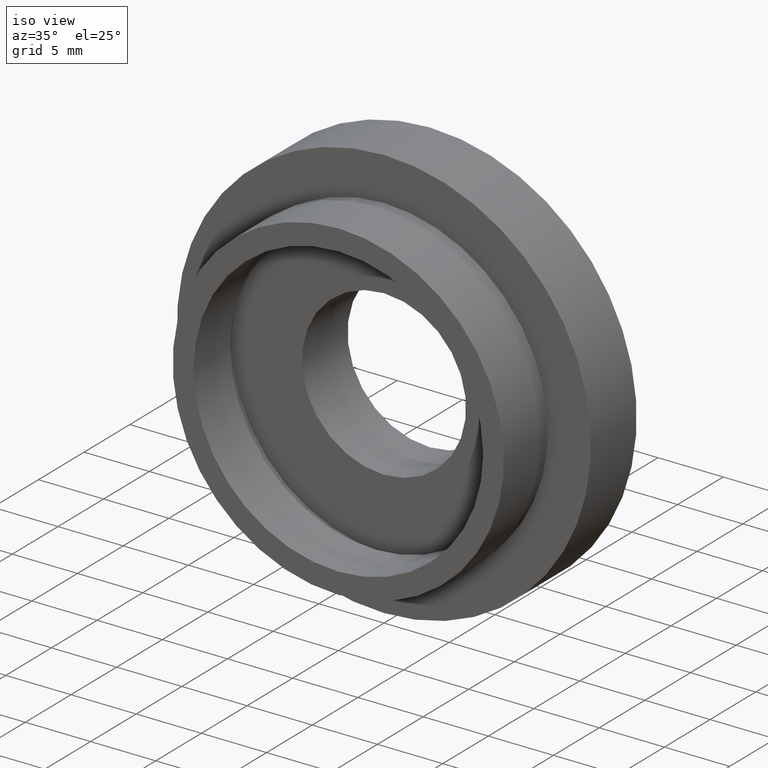
[diagram: clean part render]
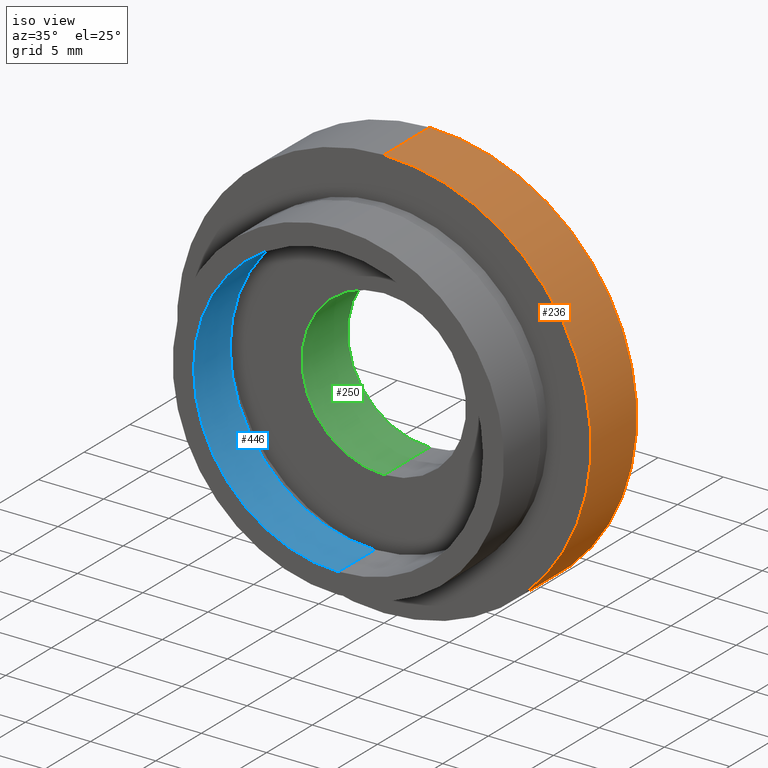
[diagram: same view with three faces highlighted in distinct colors, each labeled with its STEP entity id]
A machine part, iso view with three faces highlighted in distinct colors.
Their STEP definitions:

[orange] entity #236 — the highlighted cylindrical surface (partial cylindrical patch) has radius 15.875 mm, axis along (-0, 1, -0).
#21 = FACE_OUTER_BOUND ( 'NONE', #494, .T. ) ;
#74 = CARTESIAN_POINT ( 'NONE',  ( 1.944126793646423200E-015, 13.74468085106383300, -15.87500000000000000 ) ) ;
#85 = AXIS2_PLACEMENT_3D ( 'NONE', #604, #420, #414 ) ;
#99 = ORIENTED_EDGE ( 'NONE', *, *, #433, .T. ) ;
#117 = EDGE_CURVE ( 'NONE', #404, #522, #394, .T. ) ;
#138 = AXIS2_PLACEMENT_3D ( 'NONE', #509, #214, #557 ) ;
#199 = VERTEX_POINT ( 'NONE', #436 ) ;
#203 = VERTEX_POINT ( 'NONE', #479 ) ;
#204 = CARTESIAN_POINT ( 'NONE',  ( 0.0000000000000000000, 13.74468085106383300, 15.87500000000000000 ) ) ;
#214 = DIRECTION ( 'NONE',  ( -0.0000000000000000000, 1.000000000000000000, -0.0000000000000000000 ) ) ;
#233 = CIRCLE ( 'NONE', #138, 15.87500000000000000 ) ;
#236 = ADVANCED_FACE ( 'NONE', ( #21 ), #443, .T. ) ;
#260 = DIRECTION ( 'NONE',  ( -0.0000000000000000000, 1.000000000000000000, -0.0000000000000000000 ) ) ;
#265 = LINE ( 'NONE', #74, #558 ) ;
#306 = DIRECTION ( 'NONE',  ( -0.0000000000000000000, 1.000000000000000000, -0.0000000000000000000 ) ) ;
#333 = VECTOR ( 'NONE', #588, 1000.000000000000000 ) ;
#354 = EDGE_CURVE ( 'NONE', #404, #203, #399, .T. ) ;
#356 = CARTESIAN_POINT ( 'NONE',  ( 0.0000000000000000000, 5.000000000000000900, 15.87500000000000000 ) ) ;
#357 = CARTESIAN_POINT ( 'NONE',  ( 0.0000000000000000000, 5.000000000000000900, 0.0000000000000000000 ) ) ;
#394 = LINE ( 'NONE', #204, #333 ) ;
#399 = CIRCLE ( 'NONE', #599, 15.87500000000000000 ) ;
#404 = VERTEX_POINT ( 'NONE', #356 ) ;
#411 = EDGE_CURVE ( 'NONE', #522, #199, #233, .T. ) ;
#414 = DIRECTION ( 'NONE',  ( 0.0000000000000000000, 0.0000000000000000000, 1.000000000000000000 ) ) ;
#420 = DIRECTION ( 'NONE',  ( -0.0000000000000000000, 1.000000000000000000, -0.0000000000000000000 ) ) ;
#433 = EDGE_CURVE ( 'NONE', #203, #199, #265, .T. ) ;
#436 = CARTESIAN_POINT ( 'NONE',  ( 1.944126793646423200E-015, 10.00000000000000000, -15.87500000000000000 ) ) ;
#437 = DIRECTION ( 'NONE',  ( 0.0000000000000000000, 0.0000000000000000000, 1.000000000000000000 ) ) ;
#443 = CYLINDRICAL_SURFACE ( 'NONE', #85, 15.87500000000000000 ) ;
#479 = CARTESIAN_POINT ( 'NONE',  ( 1.944126793646423200E-015, 5.000000000000000900, -15.87500000000000000 ) ) ;
#494 = EDGE_LOOP ( 'NONE', ( #596, #99, #593, #497 ) ) ;
#497 = ORIENTED_EDGE ( 'NONE', *, *, #117, .F. ) ;
#509 = CARTESIAN_POINT ( 'NONE',  ( 0.0000000000000000000, 10.00000000000000000, 0.0000000000000000000 ) ) ;
#522 = VERTEX_POINT ( 'NONE', #591 ) ;
#557 = DIRECTION ( 'NONE',  ( 0.0000000000000000000, 0.0000000000000000000, 1.000000000000000000 ) ) ;
#558 = VECTOR ( 'NONE', #260, 1000.000000000000000 ) ;
#588 = DIRECTION ( 'NONE',  ( -0.0000000000000000000, 1.000000000000000000, -0.0000000000000000000 ) ) ;
#591 = CARTESIAN_POINT ( 'NONE',  ( 0.0000000000000000000, 10.00000000000000000, 15.87500000000000000 ) ) ;
#593 = ORIENTED_EDGE ( 'NONE', *, *, #411, .F. ) ;
#596 = ORIENTED_EDGE ( 'NONE', *, *, #354, .T. ) ;
#599 = AXIS2_PLACEMENT_3D ( 'NONE', #357, #306, #437 ) ;
#604 = CARTESIAN_POINT ( 'NONE',  ( 0.0000000000000000000, 13.74468085106383300, 0.0000000000000000000 ) ) ;

[blue] entity #446 — the highlighted cylindrical surface (partial cylindrical patch) has radius 11.1 mm, axis along (-0, 1, -0).
#19 = DIRECTION ( 'NONE',  ( 0.0000000000000000000, 0.0000000000000000000, 1.000000000000000000 ) ) ;
#25 = DIRECTION ( 'NONE',  ( -0.0000000000000000000, 1.000000000000000000, -0.0000000000000000000 ) ) ;
#28 = DIRECTION ( 'NONE',  ( 0.0000000000000000000, 0.0000000000000000000, 1.000000000000000000 ) ) ;
#69 = CARTESIAN_POINT ( 'NONE',  ( 0.0000000000000000000, 0.0000000000000000000, 0.0000000000000000000 ) ) ;
#75 = CARTESIAN_POINT ( 'NONE',  ( 0.0000000000000000000, 13.74468085106383300, 0.0000000000000000000 ) ) ;
#77 = EDGE_CURVE ( 'NONE', #269, #475, #244, .T. ) ;
#104 = AXIS2_PLACEMENT_3D ( 'NONE', #309, #25, #358 ) ;
#106 = ORIENTED_EDGE ( 'NONE', *, *, #541, .F. ) ;
#128 = CARTESIAN_POINT ( 'NONE',  ( 0.0000000000000000000, 4.000000000000000000, 11.10000000000000100 ) ) ;
#144 = CARTESIAN_POINT ( 'NONE',  ( 0.0000000000000000000, 13.74468085106383300, 11.10000000000000100 ) ) ;
#191 = CARTESIAN_POINT ( 'NONE',  ( 1.359357947053562400E-015, 4.000000000000000000, -11.10000000000000100 ) ) ;
#195 = LINE ( 'NONE', #300, #338 ) ;
#208 = EDGE_LOOP ( 'NONE', ( #106, #372, #453, #582 ) ) ;
#244 = LINE ( 'NONE', #144, #458 ) ;
#261 = DIRECTION ( 'NONE',  ( -0.0000000000000000000, 1.000000000000000000, -0.0000000000000000000 ) ) ;
#269 = VERTEX_POINT ( 'NONE', #562 ) ;
#300 = CARTESIAN_POINT ( 'NONE',  ( 1.359357947053562400E-015, 13.74468085106383300, -11.10000000000000100 ) ) ;
#309 = CARTESIAN_POINT ( 'NONE',  ( 0.0000000000000000000, 4.000000000000000000, 0.0000000000000000000 ) ) ;
#323 = EDGE_CURVE ( 'NONE', #438, #592, #195, .T. ) ;
#338 = VECTOR ( 'NONE', #495, 1000.000000000000000 ) ;
#349 = AXIS2_PLACEMENT_3D ( 'NONE', #69, #351, #19 ) ;
#351 = DIRECTION ( 'NONE',  ( -0.0000000000000000000, 1.000000000000000000, -0.0000000000000000000 ) ) ;
#358 = DIRECTION ( 'NONE',  ( 0.0000000000000000000, 0.0000000000000000000, 1.000000000000000000 ) ) ;
#362 = DIRECTION ( 'NONE',  ( -0.0000000000000000000, 1.000000000000000000, -0.0000000000000000000 ) ) ;
#368 = CIRCLE ( 'NONE', #104, 11.10000000000000100 ) ;
#372 = ORIENTED_EDGE ( 'NONE', *, *, #323, .T. ) ;
#408 = CARTESIAN_POINT ( 'NONE',  ( 1.359357947053562400E-015, 0.0000000000000000000, -11.10000000000000100 ) ) ;
#410 = FACE_OUTER_BOUND ( 'NONE', #208, .T. ) ;
#421 = EDGE_CURVE ( 'NONE', #592, #475, #368, .T. ) ;
#438 = VERTEX_POINT ( 'NONE', #408 ) ;
#446 = ADVANCED_FACE ( 'NONE', ( #410 ), #597, .F. ) ;
#453 = ORIENTED_EDGE ( 'NONE', *, *, #421, .T. ) ;
#458 = VECTOR ( 'NONE', #261, 1000.000000000000000 ) ;
#475 = VERTEX_POINT ( 'NONE', #128 ) ;
#493 = AXIS2_PLACEMENT_3D ( 'NONE', #75, #362, #28 ) ;
#495 = DIRECTION ( 'NONE',  ( -0.0000000000000000000, 1.000000000000000000, -0.0000000000000000000 ) ) ;
#540 = CIRCLE ( 'NONE', #349, 11.10000000000000100 ) ;
#541 = EDGE_CURVE ( 'NONE', #438, #269, #540, .T. ) ;
#562 = CARTESIAN_POINT ( 'NONE',  ( 0.0000000000000000000, 0.0000000000000000000, 11.10000000000000100 ) ) ;
#582 = ORIENTED_EDGE ( 'NONE', *, *, #77, .F. ) ;
#592 = VERTEX_POINT ( 'NONE', #191 ) ;
#597 = CYLINDRICAL_SURFACE ( 'NONE', #493, 11.10000000000000100 ) ;

[green] entity #250 — the highlighted cylindrical surface (partial cylindrical patch) has radius 6.295 mm, axis along (-0, 1, -0).
#8 = AXIS2_PLACEMENT_3D ( 'NONE', #337, #441, #245 ) ;
#13 = DIRECTION ( 'NONE',  ( -0.0000000000000000000, 1.000000000000000000, -0.0000000000000000000 ) ) ;
#15 = DIRECTION ( 'NONE',  ( 0.0000000000000000000, 0.0000000000000000000, 1.000000000000000000 ) ) ;
#89 = EDGE_CURVE ( 'NONE', #525, #472, #510, .T. ) ;
#127 = CARTESIAN_POINT ( 'NONE',  ( 7.709151600632590500E-016, 10.00000000000000000, -6.295000000000001700 ) ) ;
#139 = VECTOR ( 'NONE', #569, 1000.000000000000000 ) ;
#148 = VERTEX_POINT ( 'NONE', #216 ) ;
#216 = CARTESIAN_POINT ( 'NONE',  ( 0.0000000000000000000, 10.00000000000000000, 6.295000000000001700 ) ) ;
#223 = ORIENTED_EDGE ( 'NONE', *, *, #89, .T. ) ;
#226 = VECTOR ( 'NONE', #13, 1000.000000000000000 ) ;
#245 = DIRECTION ( 'NONE',  ( 0.0000000000000000000, 0.0000000000000000000, 1.000000000000000000 ) ) ;
#250 = ADVANCED_FACE ( 'NONE', ( #418 ), #552, .F. ) ;
#253 = CARTESIAN_POINT ( 'NONE',  ( 0.0000000000000000000, 4.999999999999999100, 6.295000000000001700 ) ) ;
#275 = AXIS2_PLACEMENT_3D ( 'NONE', #466, #393, #311 ) ;
#292 = VERTEX_POINT ( 'NONE', #253 ) ;
#302 = CIRCLE ( 'NONE', #415, 6.295000000000001700 ) ;
#310 = EDGE_CURVE ( 'NONE', #292, #148, #355, .T. ) ;
#311 = DIRECTION ( 'NONE',  ( 0.0000000000000000000, 0.0000000000000000000, 1.000000000000000000 ) ) ;
#337 = CARTESIAN_POINT ( 'NONE',  ( 0.0000000000000000000, 10.00000000000000000, 0.0000000000000000000 ) ) ;
#352 = EDGE_CURVE ( 'NONE', #472, #148, #535, .T. ) ;
#355 = LINE ( 'NONE', #547, #226 ) ;
#365 = EDGE_LOOP ( 'NONE', ( #505, #223, #503, #577 ) ) ;
#393 = DIRECTION ( 'NONE',  ( -0.0000000000000000000, 1.000000000000000000, -0.0000000000000000000 ) ) ;
#403 = CARTESIAN_POINT ( 'NONE',  ( 0.0000000000000000000, 4.999999999999999100, 0.0000000000000000000 ) ) ;
#415 = AXIS2_PLACEMENT_3D ( 'NONE', #403, #451, #15 ) ;
#418 = FACE_OUTER_BOUND ( 'NONE', #365, .T. ) ;
#441 = DIRECTION ( 'NONE',  ( -0.0000000000000000000, 1.000000000000000000, -0.0000000000000000000 ) ) ;
#451 = DIRECTION ( 'NONE',  ( -0.0000000000000000000, 1.000000000000000000, -0.0000000000000000000 ) ) ;
#466 = CARTESIAN_POINT ( 'NONE',  ( 0.0000000000000000000, 13.74468085106383300, 0.0000000000000000000 ) ) ;
#472 = VERTEX_POINT ( 'NONE', #127 ) ;
#503 = ORIENTED_EDGE ( 'NONE', *, *, #352, .T. ) ;
#505 = ORIENTED_EDGE ( 'NONE', *, *, #568, .F. ) ;
#510 = LINE ( 'NONE', #624, #139 ) ;
#525 = VERTEX_POINT ( 'NONE', #614 ) ;
#535 = CIRCLE ( 'NONE', #8, 6.295000000000001700 ) ;
#547 = CARTESIAN_POINT ( 'NONE',  ( 0.0000000000000000000, 13.74468085106383300, 6.295000000000001700 ) ) ;
#552 = CYLINDRICAL_SURFACE ( 'NONE', #275, 6.295000000000001700 ) ;
#568 = EDGE_CURVE ( 'NONE', #525, #292, #302, .T. ) ;
#569 = DIRECTION ( 'NONE',  ( -0.0000000000000000000, 1.000000000000000000, -0.0000000000000000000 ) ) ;
#577 = ORIENTED_EDGE ( 'NONE', *, *, #310, .F. ) ;
#614 = CARTESIAN_POINT ( 'NONE',  ( 7.709151600632590500E-016, 4.999999999999999100, -6.295000000000001700 ) ) ;
#624 = CARTESIAN_POINT ( 'NONE',  ( 7.709151600632590500E-016, 13.74468085106383300, -6.295000000000001700 ) ) ;